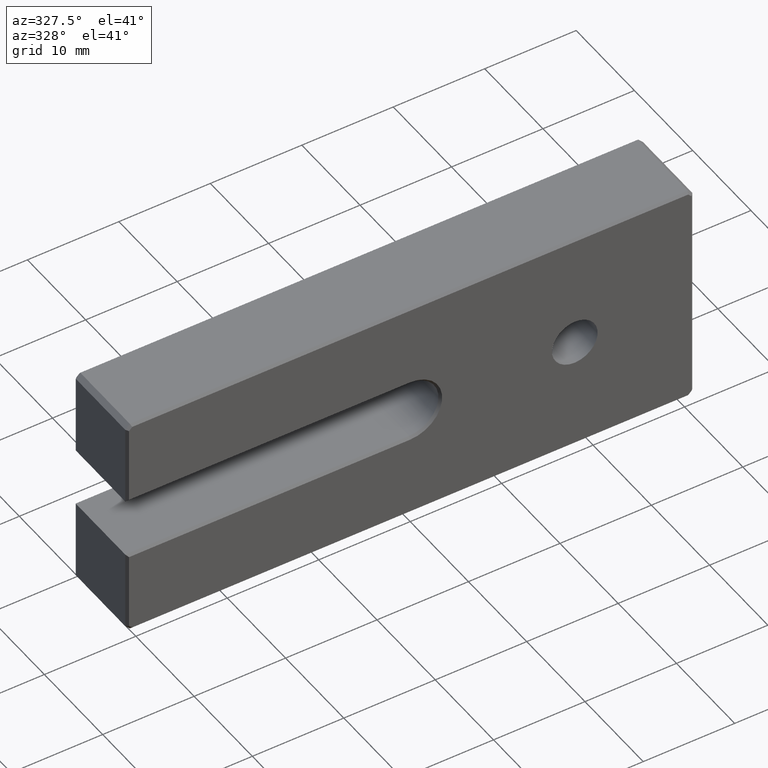
[diagram: clean part render]
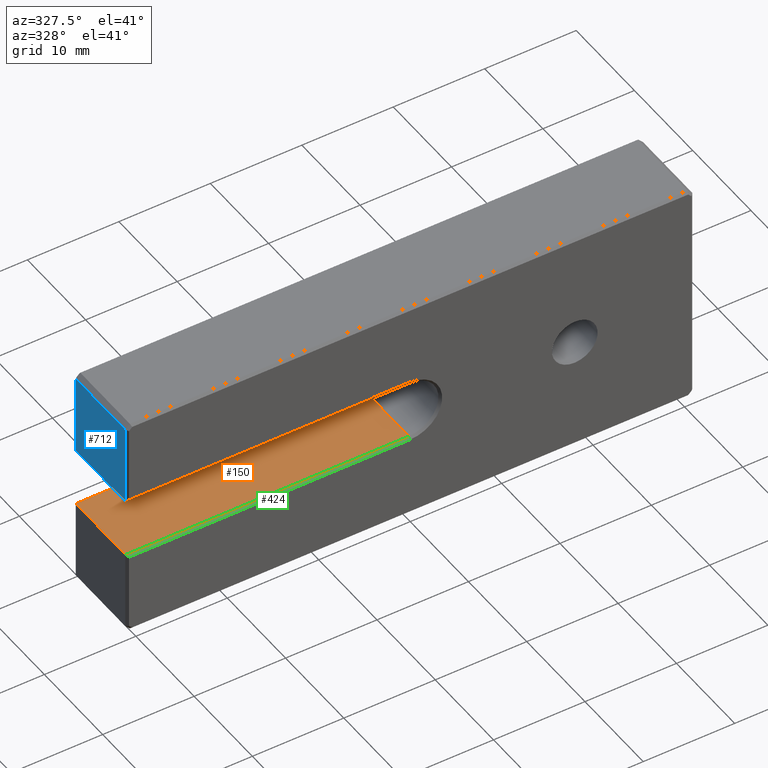
[diagram: same view with three faces highlighted in distinct colors, each labeled with its STEP entity id]
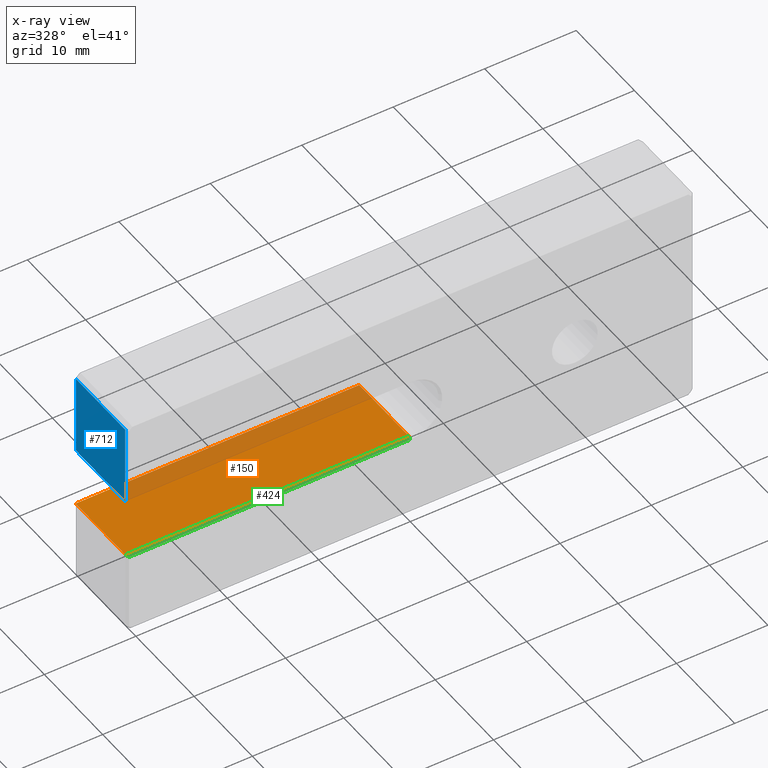
[diagram: x-ray of the same camera — body ghosted, the three highlighted faces saturated]
A machine part, auxiliary view with three faces highlighted in distinct colors.
The next image is the same camera in x-ray (body ghosted, the three faces saturated) — at least one of them is partly hidden behind the body in this view.
Their STEP definitions:

[orange] entity #150 — the highlighted planar face has unit normal (-0, 0, -1).
#19 = EDGE_LOOP ( 'NONE', ( #421, #894, #219, #168 ) ) ;
#22 = CARTESIAN_POINT ( 'NONE',  ( 0.000000000000000000, -12.00000000000000533, -3.250000000000000000 ) ) ;
#118 = EDGE_CURVE ( 'NONE', #934, #641, #1053, .T. ) ;
#150 = ADVANCED_FACE ( 'NONE', ( #804 ), #365, .F. ) ;
#168 = ORIENTED_EDGE ( 'NONE', *, *, #323, .T. ) ;
#219 = ORIENTED_EDGE ( 'NONE', *, *, #267, .T. ) ;
#267 = EDGE_CURVE ( 'NONE', #641, #409, #892, .T. ) ;
#276 = VECTOR ( 'NONE', #970, 1000.000000000000000 ) ;
#323 = EDGE_CURVE ( 'NONE', #409, #357, #558, .T. ) ;
#356 = VECTOR ( 'NONE', #617, 1000.000000000000000 ) ;
#357 = VERTEX_POINT ( 'NONE', #576 ) ;
#365 = PLANE ( 'NONE',  #994 ) ;
#371 = DIRECTION ( 'NONE',  ( -0.000000000000000000, 1.000000000000000000, -0.000000000000000000 ) ) ;
#409 = VERTEX_POINT ( 'NONE', #1110 ) ;
#421 = ORIENTED_EDGE ( 'NONE', *, *, #1077, .F. ) ;
#444 = LINE ( 'NONE', #599, #276 ) ;
#555 = VECTOR ( 'NONE', #1086, 1000.000000000000000 ) ;
#558 = LINE ( 'NONE', #839, #555 ) ;
#576 = CARTESIAN_POINT ( 'NONE',  ( -31.00000000000000711, 8.749999999999998224, -3.249999999999997780 ) ) ;
#599 = CARTESIAN_POINT ( 'NONE',  ( -31.00000000000000711, 9.000000000000000000, -3.249999999999997780 ) ) ;
#617 = DIRECTION ( 'NONE',  ( 1.000000000000000000, 0.000000000000000000, -5.595882180570342961E-17 ) ) ;
#641 = VERTEX_POINT ( 'NONE', #967 ) ;
#768 = CARTESIAN_POINT ( 'NONE',  ( -31.00000000000000711, 0.2499999999999932832, -3.249999999999997780 ) ) ;
#787 = DIRECTION ( 'NONE',  ( -1.000000000000000000, 0.000000000000000000, 5.595882180570342961E-17 ) ) ;
#804 = FACE_OUTER_BOUND ( 'NONE', #19, .T. ) ;
#839 = CARTESIAN_POINT ( 'NONE',  ( -31.00000000000000711, 8.749999999999998224, -3.249999999999998224 ) ) ;
#892 = LINE ( 'NONE', #22, #903 ) ;
#894 = ORIENTED_EDGE ( 'NONE', *, *, #118, .T. ) ;
#903 = VECTOR ( 'NONE', #371, 1000.000000000000000 ) ;
#934 = VERTEX_POINT ( 'NONE', #768 ) ;
#967 = CARTESIAN_POINT ( 'NONE',  ( 0.000000000000000000, 0.2499999999999932832, -3.250000000000000000 ) ) ;
#970 = DIRECTION ( 'NONE',  ( 0.000000000000000000, 1.000000000000000000, 0.000000000000000000 ) ) ;
#994 = AXIS2_PLACEMENT_3D ( 'NONE', #1072, #1059, #787 ) ;
#1045 = CARTESIAN_POINT ( 'NONE',  ( -62.00000000000001421, 0.2499999999999932832, -3.249999999999996447 ) ) ;
#1053 = LINE ( 'NONE', #1045, #356 ) ;
#1059 = DIRECTION ( 'NONE',  ( -5.595882180570342961E-17, 0.000000000000000000, -1.000000000000000000 ) ) ;
#1072 = CARTESIAN_POINT ( 'NONE',  ( -62.00000000000001421, -12.00000000000000533, -3.249999999999996447 ) ) ;
#1077 = EDGE_CURVE ( 'NONE', #934, #357, #444, .T. ) ;
#1086 = DIRECTION ( 'NONE',  ( -1.000000000000000000, 0.000000000000000000, 5.595882180570342961E-17 ) ) ;
#1110 = CARTESIAN_POINT ( 'NONE',  ( 0.000000000000000000, 8.749999999999998224, -3.250000000000000000 ) ) ;

[blue] entity #712 — the highlighted planar face has unit normal (1, 0, -0).
#16 = DIRECTION ( 'NONE',  ( 0.000000000000000000, -1.000000000000000000, 0.000000000000000000 ) ) ;
#23 = EDGE_CURVE ( 'NONE', #547, #1108, #349, .T. ) ;
#39 = CARTESIAN_POINT ( 'NONE',  ( -31.00000000000000711, 9.000000000000000000, -12.49999999999999822 ) ) ;
#83 = CARTESIAN_POINT ( 'NONE',  ( -31.00000000000000355, 9.000000000000000000, 12.00000000000000178 ) ) ;
#104 = CARTESIAN_POINT ( 'NONE',  ( -31.00000000000000355, 0.2499999999999932832, 12.00000000000000178 ) ) ;
#135 = FACE_OUTER_BOUND ( 'NONE', #702, .T. ) ;
#140 = PLANE ( 'NONE',  #697 ) ;
#185 = LINE ( 'NONE', #620, #761 ) ;
#193 = VECTOR ( 'NONE', #326, 1000.000000000000000 ) ;
#244 = CARTESIAN_POINT ( 'NONE',  ( -31.00000000000000355, 8.749999999999998224, 3.250000000000001776 ) ) ;
#326 = DIRECTION ( 'NONE',  ( -1.387778780781445676E-16, 0.000000000000000000, -1.000000000000000000 ) ) ;
#349 = LINE ( 'NONE', #83, #756 ) ;
#375 = ORIENTED_EDGE ( 'NONE', *, *, #438, .T. ) ;
#400 = VERTEX_POINT ( 'NONE', #412 ) ;
#412 = CARTESIAN_POINT ( 'NONE',  ( -31.00000000000000355, 8.749999999999998224, 3.250000000000004441 ) ) ;
#438 = EDGE_CURVE ( 'NONE', #1108, #400, #601, .T. ) ;
#476 = DIRECTION ( 'NONE',  ( -1.387778780781445676E-16, 0.000000000000000000, -1.000000000000000000 ) ) ;
#502 = VECTOR ( 'NONE', #797, 1000.000000000000000 ) ;
#515 = DIRECTION ( 'NONE',  ( 0.000000000000000000, 1.000000000000000000, 0.000000000000000000 ) ) ;
#547 = VERTEX_POINT ( 'NONE', #104 ) ;
#550 = DIRECTION ( 'NONE',  ( 1.000000000000000000, 0.000000000000000000, -1.387778780781445676E-16 ) ) ;
#601 = LINE ( 'NONE', #244, #193 ) ;
#613 = EDGE_CURVE ( 'NONE', #783, #547, #878, .T. ) ;
#620 = CARTESIAN_POINT ( 'NONE',  ( -31.00000000000000355, 9.000000000000000000, 3.250000000000004441 ) ) ;
#691 = ORIENTED_EDGE ( 'NONE', *, *, #1023, .T. ) ;
#697 = AXIS2_PLACEMENT_3D ( 'NONE', #39, #550, #476 ) ;
#702 = EDGE_LOOP ( 'NONE', ( #691, #1066, #739, #375 ) ) ;
#712 = ADVANCED_FACE ( 'NONE', ( #135 ), #140, .F. ) ;
#723 = CARTESIAN_POINT ( 'NONE',  ( -31.00000000000000355, 0.2499999999999932832, 3.250000000000004441 ) ) ;
#739 = ORIENTED_EDGE ( 'NONE', *, *, #23, .T. ) ;
#756 = VECTOR ( 'NONE', #515, 1000.000000000000000 ) ;
#761 = VECTOR ( 'NONE', #16, 1000.000000000000000 ) ;
#783 = VERTEX_POINT ( 'NONE', #723 ) ;
#797 = DIRECTION ( 'NONE',  ( 1.387778780781445676E-16, 0.000000000000000000, 1.000000000000000000 ) ) ;
#878 = LINE ( 'NONE', #884, #502 ) ;
#884 = CARTESIAN_POINT ( 'NONE',  ( -31.00000000000000711, 0.2499999999999932832, -12.49999999999999822 ) ) ;
#1023 = EDGE_CURVE ( 'NONE', #400, #783, #185, .T. ) ;
#1066 = ORIENTED_EDGE ( 'NONE', *, *, #613, .T. ) ;
#1088 = CARTESIAN_POINT ( 'NONE',  ( -31.00000000000000355, 8.749999999999998224, 12.00000000000000178 ) ) ;
#1108 = VERTEX_POINT ( 'NONE', #1088 ) ;

[green] entity #424 — the highlighted planar face has unit normal (-0, 0.7071, -0.7071).
#9 = EDGE_LOOP ( 'NONE', ( #976, #912, #184, #848 ) ) ;
#48 = VECTOR ( 'NONE', #957, 999.9999999999998863 ) ;
#117 = LINE ( 'NONE', #962, #48 ) ;
#118 = EDGE_CURVE ( 'NONE', #934, #641, #1053, .T. ) ;
#142 = AXIS2_PLACEMENT_3D ( 'NONE', #157, #249, #240 ) ;
#157 = CARTESIAN_POINT ( 'NONE',  ( -1.958558763199620221E-16, 0.000000000000000000, -3.500000000000000000 ) ) ;
#163 = CARTESIAN_POINT ( 'NONE',  ( -30.75000000000000711, 0.000000000000000000, -3.499999999999998224 ) ) ;
#170 = EDGE_CURVE ( 'NONE', #287, #641, #117, .T. ) ;
#184 = ORIENTED_EDGE ( 'NONE', *, *, #467, .F. ) ;
#232 = VECTOR ( 'NONE', #936, 1000.000000000000000 ) ;
#240 = DIRECTION ( 'NONE',  ( -1.000000000000000000, 0.000000000000000000, 5.595882180570342961E-17 ) ) ;
#249 = DIRECTION ( 'NONE',  ( -3.956886236602199280E-17, 0.7071067811865573427, -0.7071067811865378028 ) ) ;
#287 = VERTEX_POINT ( 'NONE', #638 ) ;
#356 = VECTOR ( 'NONE', #617, 1000.000000000000000 ) ;
#419 = DIRECTION ( 'NONE',  ( -1.000000000000000000, 0.000000000000000000, 5.595882180570342961E-17 ) ) ;
#424 = ADVANCED_FACE ( 'NONE', ( #589 ), #681, .F. ) ;
#467 = EDGE_CURVE ( 'NONE', #490, #934, #519, .T. ) ;
#490 = VERTEX_POINT ( 'NONE', #163 ) ;
#507 = EDGE_CURVE ( 'NONE', #287, #490, #1130, .T. ) ;
#519 = LINE ( 'NONE', #760, #232 ) ;
#589 = FACE_OUTER_BOUND ( 'NONE', #9, .T. ) ;
#617 = DIRECTION ( 'NONE',  ( 1.000000000000000000, 0.000000000000000000, -5.595882180570342961E-17 ) ) ;
#638 = CARTESIAN_POINT ( 'NONE',  ( -1.398970545142586973E-17, 0.000000000000000000, -3.500000000000000000 ) ) ;
#641 = VERTEX_POINT ( 'NONE', #967 ) ;
#681 = PLANE ( 'NONE',  #142 ) ;
#760 = CARTESIAN_POINT ( 'NONE',  ( -20.49999999999991118, -10.24999999999988631, -13.75000000000016875 ) ) ;
#768 = CARTESIAN_POINT ( 'NONE',  ( -31.00000000000000711, 0.2499999999999932832, -3.249999999999997780 ) ) ;
#848 = ORIENTED_EDGE ( 'NONE', *, *, #507, .F. ) ;
#867 = CARTESIAN_POINT ( 'NONE',  ( -1.958558763199620221E-16, 0.000000000000000000, -3.500000000000000000 ) ) ;
#901 = VECTOR ( 'NONE', #419, 1000.000000000000000 ) ;
#912 = ORIENTED_EDGE ( 'NONE', *, *, #118, .F. ) ;
#934 = VERTEX_POINT ( 'NONE', #768 ) ;
#936 = DIRECTION ( 'NONE',  ( -0.5773502691896285066, 0.5773502691896165162, 0.5773502691896323924 ) ) ;
#957 = DIRECTION ( 'NONE',  ( 3.956886236602308981E-17, 0.7071067811865378028, 0.7071067811865573427 ) ) ;
#962 = CARTESIAN_POINT ( 'NONE',  ( -1.398970545142586973E-17, 0.000000000000000000, -3.500000000000000000 ) ) ;
#967 = CARTESIAN_POINT ( 'NONE',  ( 0.000000000000000000, 0.2499999999999932832, -3.250000000000000000 ) ) ;
#976 = ORIENTED_EDGE ( 'NONE', *, *, #170, .T. ) ;
#1045 = CARTESIAN_POINT ( 'NONE',  ( -62.00000000000001421, 0.2499999999999932832, -3.249999999999996447 ) ) ;
#1053 = LINE ( 'NONE', #1045, #356 ) ;
#1130 = LINE ( 'NONE', #867, #901 ) ;